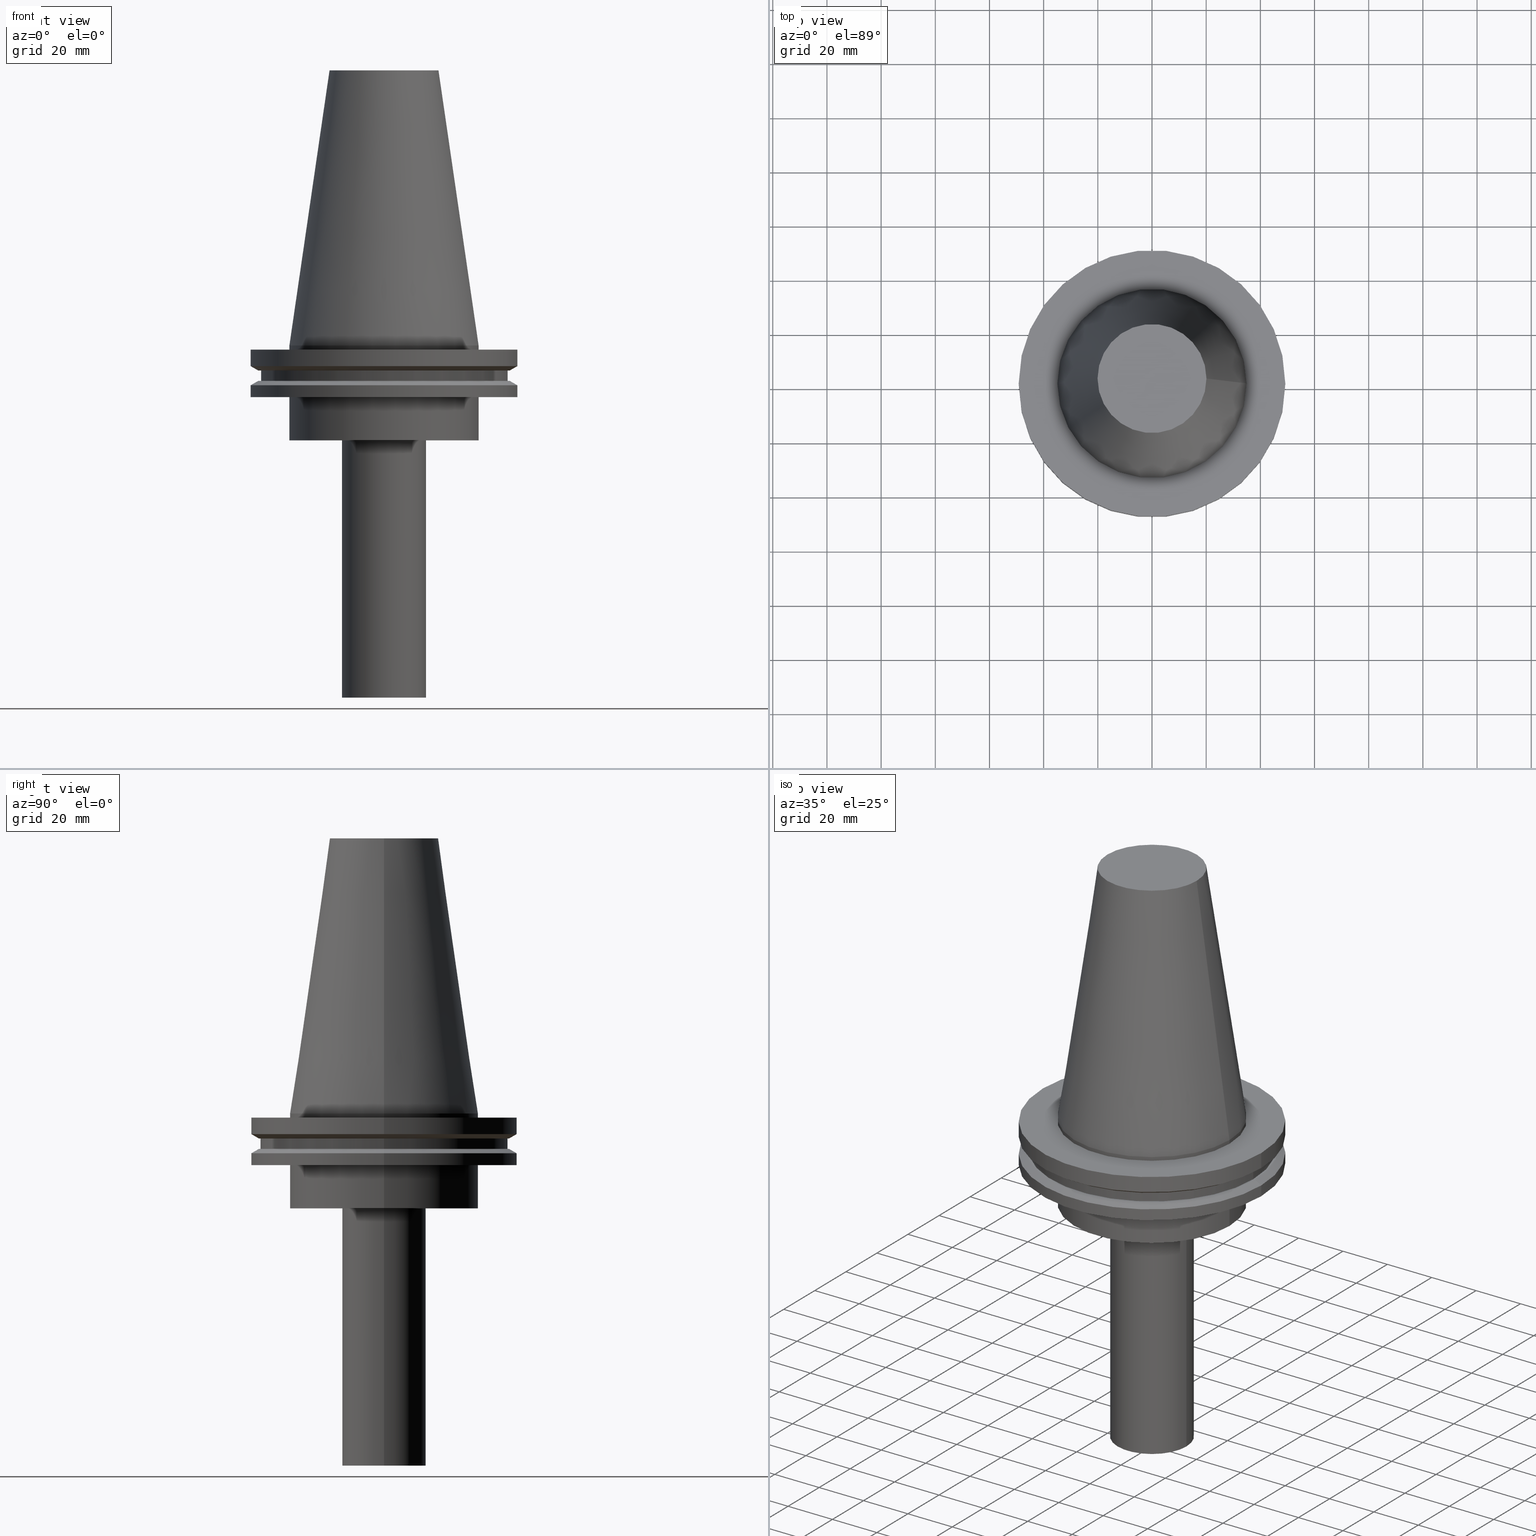
[diagram: canonical four-view strip — front | top / right | iso, engineering-drawing reading convention]
A machine part, canonical four-view strip (front | top / right | iso — engineering-drawing reading convention). The complete STEP part file that produces these views, byte-faithful:
ISO-10303-21;
HEADER;
FILE_DESCRIPTION (( 'STEP AP203' ),
    '1' );
FILE_NAME ('11.326.633.stp',
    '2022-03-09T14:50:32',
    ( '' ),
    ( '' ),
    'SwSTEP 2.0',
    'SolidWorks 2021',
    '' );
FILE_SCHEMA (( 'CONFIG_CONTROL_DESIGN' ));
ENDSEC;

DATA;
#1 = DATE_TIME_ROLE ( 'creation_date' ) ;
#2 = AXIS2_PLACEMENT_3D ( 'NONE', #286, #349, #42 ) ;
#3 = DIRECTION ( 'NONE',  ( -0.000000000000000000, -0.000000000000000000, 1.000000000000000000 ) ) ;
#4 = CARTESIAN_POINT ( 'NONE',  ( 0.000000000000000000, 0.000000000000000000, -1.499999999999987566 ) ) ;
#5 = AXIS2_PLACEMENT_3D ( 'NONE', #214, #336, #10 ) ;
#6 = AXIS2_PLACEMENT_3D ( 'NONE', #280, #367, #250 ) ;
#7 = DIRECTION ( 'NONE',  ( -0.000000000000000000, -0.000000000000000000, 1.000000000000000000 ) ) ;
#8 = CALENDAR_DATE ( 2022, 9, 3 ) ;
#9 = ORIENTED_EDGE ( 'NONE', *, *, #273, .T. ) ;
#10 = DIRECTION ( 'NONE',  ( 1.000000000000000000, 0.000000000000000000, 0.000000000000000000 ) ) ;
#11 = PERSON_AND_ORGANIZATION_ROLE ( 'classification_officer' ) ;
#12 = FACE_BOUND ( 'NONE', #355, .T. ) ;
#13 = FACE_OUTER_BOUND ( 'NONE', #325, .T. ) ;
#14 = PERSON_AND_ORGANIZATION ( #107, #312 ) ;
#15 = ORIENTED_EDGE ( 'NONE', *, *, #263, .F. ) ;
#16 = AXIS2_PLACEMENT_3D ( 'NONE', #30, #150, #100 ) ;
#17 = CYLINDRICAL_SURFACE ( 'NONE', #176, 49.21499999999999631 ) ;
#18 = DIRECTION ( 'NONE',  ( 1.000000000000000000, 0.000000000000000000, 0.000000000000000000 ) ) ;
#19 = EDGE_CURVE ( 'NONE', #77, #77, #297, .T. ) ;
#20 = VERTEX_POINT ( 'NONE', #142 ) ;
#21 = ORIENTED_EDGE ( 'NONE', *, *, #348, .T. ) ;
#22 = CIRCLE ( 'NONE', #50, 45.64500000000000313 ) ;
#23 = EDGE_LOOP ( 'NONE', ( #211 ) ) ;
#24 = ORIENTED_EDGE ( 'NONE', *, *, #273, .F. ) ;
#25 = EDGE_CURVE ( 'NONE', #20, #20, #149, .T. ) ;
#26 = DIRECTION ( 'NONE',  ( -0.000000000000000000, -0.000000000000000000, 1.000000000000000000 ) ) ;
#27 = COORDINATED_UNIVERSAL_TIME_OFFSET ( 6, 0, .BEHIND. ) ;
#28 = APPROVAL_PERSON_ORGANIZATION ( #14, #73, #341 ) ;
#29 = CARTESIAN_POINT ( 'NONE',  ( 0.000000000000000000, 0.000000000000000000, 0.000000000000000000 ) ) ;
#30 = CARTESIAN_POINT ( 'NONE',  ( 0.000000000000000000, 0.000000000000000000, -1.499999999999987566 ) ) ;
#31 = ADVANCED_FACE ( 'NONE', ( #350, #200 ), #74, .F. ) ;
#32 = CALENDAR_DATE ( 2022, 9, 3 ) ;
#33 = PRODUCT_RELATED_PRODUCT_CATEGORY ( 'detail', '', ( #235 ) ) ;
#34 = DIRECTION ( 'NONE',  ( -0.000000000000000000, -0.000000000000000000, 1.000000000000000000 ) ) ;
#35 = CARTESIAN_POINT ( 'NONE',  ( 0.000000000000000000, 45.64500000000000313, -13.05499999999999794 ) ) ;
#36 = DIRECTION ( 'NONE',  ( 1.000000000000000000, 0.000000000000000000, 0.000000000000000000 ) ) ;
#37 = CC_DESIGN_APPROVAL ( #339, ( #135 ) ) ;
#38 = ORIENTED_EDGE ( 'NONE', *, *, #289, .T. ) ;
#39 = CARTESIAN_POINT ( 'NONE',  ( 15.50000000000000000, 0.000000000000000000, -130.0000000000000000 ) ) ;
#40 = EDGE_CURVE ( 'NONE', #316, #316, #391, .T. ) ;
#41 = PERSON_AND_ORGANIZATION ( #107, #312 ) ;
#42 = DIRECTION ( 'NONE',  ( 1.000000000000000000, 0.000000000000000000, 0.000000000000000000 ) ) ;
#43 = PERSON_AND_ORGANIZATION ( #107, #312 ) ;
#44 = VERTEX_POINT ( 'NONE', #161 ) ;
#45 = ORIENTED_EDGE ( 'NONE', *, *, #40, .F. ) ;
#46 = CARTESIAN_POINT ( 'NONE',  ( 34.92499999999999005, 0.000000000000000000, 0.000000000000000000 ) ) ;
#47 = CALENDAR_DATE ( 2022, 9, 3 ) ;
#48 = ORIENTED_EDGE ( 'NONE', *, *, #212, .F. ) ;
#49 = CARTESIAN_POINT ( 'NONE',  ( 0.000000000000000000, 0.000000000000000000, 101.5999999999999943 ) ) ;
#50 = AXIS2_PLACEMENT_3D ( 'NONE', #125, #128, #253 ) ;
#51 = ADVANCED_FACE ( 'NONE', ( #262, #109 ), #196, .T. ) ;
#52 = ORIENTED_EDGE ( 'NONE', *, *, #123, .T. ) ;
#53 = DATE_AND_TIME ( #32, #204 ) ;
#54 = DIRECTION ( 'NONE',  ( 0.000000000000000000, 0.000000000000000000, -1.000000000000000000 ) ) ;
#55 = CIRCLE ( 'NONE', #86, 49.21499999999998920 ) ;
#56 = ADVANCED_FACE ( 'NONE', ( #59 ), #307, .F. ) ;
#57 = CARTESIAN_POINT ( 'NONE',  ( 0.000000000000000000, 0.000000000000000000, 101.5999999999999943 ) ) ;
#58 = CARTESIAN_POINT ( 'NONE',  ( 0.000000000000000000, 0.000000000000000000, 0.000000000000000000 ) ) ;
#59 = FACE_OUTER_BOUND ( 'NONE', #254, .T. ) ;
#60 = CARTESIAN_POINT ( 'NONE',  ( 0.000000000000000000, 0.000000000000000000, -130.0000000000000000 ) ) ;
#61 = APPROVAL_ROLE ( '' ) ;
#62 =( NAMED_UNIT ( * ) SI_UNIT ( $, .STERADIAN. ) SOLID_ANGLE_UNIT ( ) );
#63 = FACE_OUTER_BOUND ( 'NONE', #356, .T. ) ;
#64 = COORDINATED_UNIVERSAL_TIME_OFFSET ( 6, 0, .BEHIND. ) ;
#65 = EDGE_LOOP ( 'NONE', ( #287 ) ) ;
#66 = CC_DESIGN_APPROVAL ( #159, ( #144 ) ) ;
#67 = CALENDAR_DATE ( 2022, 9, 3 ) ;
#68 = PLANE ( 'NONE',  #328 ) ;
#69 = VERTEX_POINT ( 'NONE', #284 ) ;
#70 = CARTESIAN_POINT ( 'NONE',  ( 34.92499999999999716, 0.000000000000000000, -19.04999999999999716 ) ) ;
#71 = CARTESIAN_POINT ( 'NONE',  ( 49.21499999999998920, 0.000000000000000000, -19.04999999999999716 ) ) ;
#72 = DIRECTION ( 'NONE',  ( 1.000000000000000000, 0.000000000000000000, 0.000000000000000000 ) ) ;
#73 = APPROVAL ( #372, 'UNSPECIFIED' ) ;
#74 = PLANE ( 'NONE',  #324 ) ;
#75 = LOCAL_TIME ( 8, 50, 32.00000000000000000, #228 ) ;
#76 = AXIS2_PLACEMENT_3D ( 'NONE', #29, #34, #88 ) ;
#77 = VERTEX_POINT ( 'NONE', #46 ) ;
#78 = EDGE_LOOP ( 'NONE', ( #15 ) ) ;
#79 = EDGE_LOOP ( 'NONE', ( #21 ) ) ;
#80 = EDGE_LOOP ( 'NONE', ( #267 ) ) ;
#81 = ORIENTED_EDGE ( 'NONE', *, *, #156, .F. ) ;
#82 = DIRECTION ( 'NONE',  ( 0.000000000000000000, 0.000000000000000000, 1.000000000000000000 ) ) ;
#83 = AXIS2_PLACEMENT_3D ( 'NONE', #60, #7, #36 ) ;
#84 = PLANE ( 'NONE',  #102 ) ;
#85 = CARTESIAN_POINT ( 'NONE',  ( 0.000000000000000000, 0.000000000000000000, -9.204999999999991189 ) ) ;
#86 = AXIS2_PLACEMENT_3D ( 'NONE', #188, #292, #382 ) ;
#87 = DIRECTION ( 'NONE',  ( 1.000000000000000000, 0.000000000000000000, 0.000000000000000000 ) ) ;
#88 = DIRECTION ( 'NONE',  ( 1.000000000000000000, 0.000000000000000000, 0.000000000000000000 ) ) ;
#89 = CC_DESIGN_PERSON_AND_ORGANIZATION_ASSIGNMENT ( #43, #96, ( #144 ) ) ;
#90 = CYLINDRICAL_SURFACE ( 'NONE', #290, 34.92499999999999005 ) ;
#91 = ADVANCED_FACE ( 'NONE', ( #275, #304 ), #308, .T. ) ;
#92 = DIRECTION ( 'NONE',  ( -0.000000000000000000, -0.000000000000000000, 1.000000000000000000 ) ) ;
#93 = FACE_OUTER_BOUND ( 'NONE', #323, .T. ) ;
#94 = VERTEX_POINT ( 'NONE', #213 ) ;
#95 = ADVANCED_FACE ( 'NONE', ( #394, #395 ), #306, .T. ) ;
#96 = PERSON_AND_ORGANIZATION_ROLE ( 'design_supplier' ) ;
#97 = ORIENTED_EDGE ( 'NONE', *, *, #359, .T. ) ;
#98 = ADVANCED_BREP_SHAPE_REPRESENTATION ( '11.326.633', ( #364, #368 ), #148 ) ;
#99 = AXIS2_PLACEMENT_3D ( 'NONE', #195, #389, #18 ) ;
#100 = DIRECTION ( 'NONE',  ( 1.000000000000000000, 0.000000000000000000, 0.000000000000000000 ) ) ;
#101 = COORDINATED_UNIVERSAL_TIME_OFFSET ( 6, 0, .BEHIND. ) ;
#102 = AXIS2_PLACEMENT_3D ( 'NONE', #35, #360, #209 ) ;
#103 = CIRCLE ( 'NONE', #226, 49.21500000000000341 ) ;
#104 = CC_DESIGN_DATE_AND_TIME_ASSIGNMENT ( #174, #1, ( #135 ) ) ;
#105 = CARTESIAN_POINT ( 'NONE',  ( 0.000000000000000000, 0.000000000000000000, 101.5999999999999943 ) ) ;
#106 = EDGE_LOOP ( 'NONE', ( #138 ) ) ;
#107 = PERSON ( 'UNSPECIFIED', 'UNSPECIFIED', 'UNSPECIFIED', ('UNSPECIFIED'), ('UNSPECIFIED'), ('UNSPECIFIED') ) ;
#108 = FACE_OUTER_BOUND ( 'NONE', #266, .T. ) ;
#109 = FACE_OUTER_BOUND ( 'NONE', #79, .T. ) ;
#110 = AXIS2_PLACEMENT_3D ( 'NONE', #105, #163, #72 ) ;
#111 = PLANE ( 'NONE',  #2 ) ;
#112 = EDGE_LOOP ( 'NONE', ( #299 ) ) ;
#113 = ADVANCED_FACE ( 'NONE', ( #329, #118 ), #202, .T. ) ;
#114 = EDGE_LOOP ( 'NONE', ( #52 ) ) ;
#115 = CARTESIAN_POINT ( 'NONE',  ( 0.000000000000000000, 34.92499999999999716, -35.00000000000000000 ) ) ;
#116 = DIRECTION ( 'NONE',  ( -0.000000000000000000, -0.000000000000000000, 1.000000000000000000 ) ) ;
#117 = CIRCLE ( 'NONE', #309, 34.92499999999999716 ) ;
#118 = FACE_OUTER_BOUND ( 'NONE', #65, .T. ) ;
#119 = DIRECTION ( 'NONE',  ( 1.000000000000000000, 0.000000000000000000, 0.000000000000000000 ) ) ;
#120 = CIRCLE ( 'NONE', #343, 34.92499999999999716 ) ;
#121 = DIRECTION ( 'NONE',  ( -0.000000000000000000, -0.000000000000000000, 1.000000000000000000 ) ) ;
#122 = ADVANCED_FACE ( 'NONE', ( #363, #180 ), #277, .F. ) ;
#123 = EDGE_CURVE ( 'NONE', #230, #230, #248, .T. ) ;
#124 = DIRECTION ( 'NONE',  ( 1.000000000000000000, 0.000000000000000000, 0.000000000000000000 ) ) ;
#125 = CARTESIAN_POINT ( 'NONE',  ( 0.000000000000000000, 0.000000000000000000, -9.204999999999991189 ) ) ;
#126 = CC_DESIGN_SECURITY_CLASSIFICATION ( #296, ( #144 ) ) ;
#127 = AXIS2_PLACEMENT_3D ( 'NONE', #4, #3, #124 ) ;
#128 = DIRECTION ( 'NONE',  ( -0.000000000000000000, -0.000000000000000000, 1.000000000000000000 ) ) ;
#129 = DIRECTION ( 'NONE',  ( 1.000000000000000000, 0.000000000000000000, 0.000000000000000000 ) ) ;
#130 = EDGE_LOOP ( 'NONE', ( #383 ) ) ;
#131 = SHAPE_DEFINITION_REPRESENTATION ( #173, #98 ) ;
#132 = UNCERTAINTY_MEASURE_WITH_UNIT (LENGTH_MEASURE( 1.000000000000000082E-05 ), #256, 'distance_accuracy_value', 'NONE');
#133 = EDGE_LOOP ( 'NONE', ( #48 ) ) ;
#134 = EDGE_LOOP ( 'NONE', ( #232 ) ) ;
#135 = PRODUCT_DEFINITION ( 'UNKNOWN', '', #144, #353 ) ;
#136 = CYLINDRICAL_SURFACE ( 'NONE', #110, 49.21499999999998920 ) ;
#137 = APPROVAL_DATE_TIME ( #216, #159 ) ;
#138 = ORIENTED_EDGE ( 'NONE', *, *, #201, .F. ) ;
#139 = DIRECTION ( 'NONE',  ( -1.000000000000000000, 0.000000000000000000, -0.000000000000000000 ) ) ;
#140 = DIRECTION ( 'NONE',  ( 0.000000000000000000, -0.000000000000000000, 1.000000000000000000 ) ) ;
#141 = CONICAL_SURFACE ( 'NONE', #294, 49.21499999999998920, 1.047197551196554333 ) ;
#142 = CARTESIAN_POINT ( 'NONE',  ( 15.50000000000000000, 0.000000000000000000, -35.00000000000000000 ) ) ;
#143 = ORIENTED_EDGE ( 'NONE', *, *, #359, .F. ) ;
#144 = PRODUCT_DEFINITION_FORMATION_WITH_SPECIFIED_SOURCE ( 'ANY', '', #235, .NOT_KNOWN. ) ;
#145 = ORIENTED_EDGE ( 'NONE', *, *, #201, .T. ) ;
#146 = EDGE_LOOP ( 'NONE', ( #260 ) ) ;
#147 = DIRECTION ( 'NONE',  ( 1.000000000000000000, 0.000000000000000000, 0.000000000000000000 ) ) ;
#148 =( GEOMETRIC_REPRESENTATION_CONTEXT ( 3 ) GLOBAL_UNCERTAINTY_ASSIGNED_CONTEXT ( ( #132 ) ) GLOBAL_UNIT_ASSIGNED_CONTEXT ( ( #256, #222, #62 ) ) REPRESENTATION_CONTEXT ( 'NONE', 'WORKASPACE' ) );
#149 = CIRCLE ( 'NONE', #99, 15.50000000000000000 ) ;
#150 = DIRECTION ( 'NONE',  ( -0.000000000000000000, -0.000000000000000000, 1.000000000000000000 ) ) ;
#151 = APPROVAL_DATE_TIME ( #53, #339 ) ;
#152 = CARTESIAN_POINT ( 'NONE',  ( 0.000000000000000000, 0.000000000000000000, 101.5999999999999943 ) ) ;
#153 = AXIS2_PLACEMENT_3D ( 'NONE', #175, #121, #87 ) ;
#154 = DIRECTION ( 'NONE',  ( 1.000000000000000000, 0.000000000000000000, 0.000000000000000000 ) ) ;
#155 = CARTESIAN_POINT ( 'NONE',  ( 0.000000000000000000, 46.43919780457007818, -9.204999999999998295 ) ) ;
#156 = EDGE_CURVE ( 'NONE', #265, #265, #351, .T. ) ;
#157 = MECHANICAL_CONTEXT ( 'NONE', #314, 'mechanical' ) ;
#158 = CALENDAR_DATE ( 2022, 9, 3 ) ;
#159 = APPROVAL ( #247, 'UNSPECIFIED' ) ;
#160 = SECURITY_CLASSIFICATION_LEVEL ( 'unclassified' ) ;
#161 = CARTESIAN_POINT ( 'NONE',  ( 20.10819343178871321, 0.000000000000000000, 101.5999999999999801 ) ) ;
#162 = CARTESIAN_POINT ( 'NONE',  ( 46.43919780457007818, 0.000000000000000000, -9.204999999999991189 ) ) ;
#163 = DIRECTION ( 'NONE',  ( -0.000000000000000000, -0.000000000000000000, 1.000000000000000000 ) ) ;
#164 = ORIENTED_EDGE ( 'NONE', *, *, #348, .F. ) ;
#165 = CARTESIAN_POINT ( 'NONE',  ( 0.000000000000000000, 0.000000000000000000, 101.5999999999999943 ) ) ;
#166 = ADVANCED_FACE ( 'NONE', ( #244, #245 ), #84, .F. ) ;
#167 = ORIENTED_EDGE ( 'NONE', *, *, #233, .F. ) ;
#168 = CARTESIAN_POINT ( 'NONE',  ( 0.000000000000000000, 0.000000000000000000, -13.05499999999999794 ) ) ;
#169 = AXIS2_PLACEMENT_3D ( 'NONE', #310, #379, #139 ) ;
#170 = DIRECTION ( 'NONE',  ( -0.000000000000000000, -0.000000000000000000, 1.000000000000000000 ) ) ;
#171 = CIRCLE ( 'NONE', #5, 46.43919780457007818 ) ;
#172 = CARTESIAN_POINT ( 'NONE',  ( 0.000000000000000000, 0.000000000000000000, -19.04999999999999716 ) ) ;
#173 = PRODUCT_DEFINITION_SHAPE ( 'NONE', 'NONE',  #135 ) ;
#174 = DATE_AND_TIME ( #8, #264 ) ;
#175 = CARTESIAN_POINT ( 'NONE',  ( 0.000000000000000000, 0.000000000000000000, -9.204999999999991189 ) ) ;
#176 = AXIS2_PLACEMENT_3D ( 'NONE', #165, #194, #258 ) ;
#177 = AXIS2_PLACEMENT_3D ( 'NONE', #168, #234, #231 ) ;
#178 = CARTESIAN_POINT ( 'NONE',  ( 0.000000000000000000, 0.000000000000000000, 101.5999999999999801 ) ) ;
#179 = DIRECTION ( 'NONE',  ( -1.000000000000000000, 0.000000000000000000, 0.000000000000000000 ) ) ;
#180 = FACE_OUTER_BOUND ( 'NONE', #114, .T. ) ;
#181 = FACE_BOUND ( 'NONE', #225, .T. ) ;
#182 = CIRCLE ( 'NONE', #16, 34.92499999999999005 ) ;
#183 = CARTESIAN_POINT ( 'NONE',  ( 0.000000000000000000, 0.000000000000000000, -7.602389855251287187 ) ) ;
#184 = EDGE_CURVE ( 'NONE', #347, #347, #117, .T. ) ;
#185 = PLANE ( 'NONE',  #169 ) ;
#186 = LOCAL_TIME ( 8, 50, 32.00000000000000000, #293 ) ;
#187 = ADVANCED_FACE ( 'NONE', ( #303, #393 ), #220, .T. ) ;
#188 = CARTESIAN_POINT ( 'NONE',  ( 0.000000000000000000, 0.000000000000000000, -19.04999999999999716 ) ) ;
#189 = LOCAL_TIME ( 8, 50, 32.00000000000000000, #101 ) ;
#190 = DIRECTION ( 'NONE',  ( 1.000000000000000000, 0.000000000000000000, 0.000000000000000000 ) ) ;
#191 = AXIS2_PLACEMENT_3D ( 'NONE', #58, #206, #179 ) ;
#192 = ORIENTED_EDGE ( 'NONE', *, *, #25, .T. ) ;
#193 = ADVANCED_FACE ( 'NONE', ( #331, #203 ), #90, .T. ) ;
#194 = DIRECTION ( 'NONE',  ( -0.000000000000000000, -0.000000000000000000, 1.000000000000000000 ) ) ;
#195 = CARTESIAN_POINT ( 'NONE',  ( 0.000000000000000000, 0.000000000000000000, -35.00000000000000000 ) ) ;
#196 = CYLINDRICAL_SURFACE ( 'NONE', #210, 34.92499999999999716 ) ;
#197 = ORIENTED_EDGE ( 'NONE', *, *, #289, .F. ) ;
#198 = AXIS2_PLACEMENT_3D ( 'NONE', #362, #54, #270 ) ;
#199 = CC_DESIGN_PERSON_AND_ORGANIZATION_ASSIGNMENT ( #285, #11, ( #296 ) ) ;
#200 = FACE_OUTER_BOUND ( 'NONE', #381, .T. ) ;
#201 = EDGE_CURVE ( 'NONE', #44, #44, #346, .T. ) ;
#202 = CYLINDRICAL_SURFACE ( 'NONE', #257, 45.64500000000000313 ) ;
#203 = FACE_OUTER_BOUND ( 'NONE', #146, .T. ) ;
#204 = LOCAL_TIME ( 8, 50, 32.00000000000000000, #27 ) ;
#205 = APPLICATION_PROTOCOL_DEFINITION ( 'international standard', 'config_control_design', 1994, #314 ) ;
#206 = DIRECTION ( 'NONE',  ( 0.000000000000000000, 0.000000000000000000, -1.000000000000000000 ) ) ;
#207 = CC_DESIGN_DATE_AND_TIME_ASSIGNMENT ( #224, #219, ( #296 ) ) ;
#208 = DIRECTION ( 'NONE',  ( 1.000000000000000000, 0.000000000000000000, 0.000000000000000000 ) ) ;
#209 = DIRECTION ( 'NONE',  ( -1.000000000000000000, 0.000000000000000000, -0.000000000000000000 ) ) ;
#210 = AXIS2_PLACEMENT_3D ( 'NONE', #49, #26, #147 ) ;
#211 = ORIENTED_EDGE ( 'NONE', *, *, #123, .F. ) ;
#212 = EDGE_CURVE ( 'NONE', #371, #371, #182, .T. ) ;
#213 = CARTESIAN_POINT ( 'NONE',  ( 49.21500000000000341, 0.000000000000000000, -7.602389855251287187 ) ) ;
#214 = CARTESIAN_POINT ( 'NONE',  ( 0.000000000000000000, 0.000000000000000000, -13.05499999999999794 ) ) ;
#215 = ORIENTED_EDGE ( 'NONE', *, *, #263, .T. ) ;
#216 = DATE_AND_TIME ( #47, #186 ) ;
#217 = EDGE_LOOP ( 'NONE', ( #326 ) ) ;
#218 = CARTESIAN_POINT ( 'NONE',  ( 34.92499999999999716, 0.000000000000000000, -35.00000000000000000 ) ) ;
#219 = DATE_TIME_ROLE ( 'classification_date' ) ;
#220 = CONICAL_SURFACE ( 'NONE', #238, 46.43919780457007818, 1.047197551196575205 ) ;
#221 = APPLICATION_CONTEXT ( 'configuration controlled 3d designs of mechanical parts and assemblies' ) ;
#222 =( NAMED_UNIT ( * ) PLANE_ANGLE_UNIT ( ) SI_UNIT ( $, .RADIAN. ) );
#223 = FACE_OUTER_BOUND ( 'NONE', #357, .T. ) ;
#224 = DATE_AND_TIME ( #158, #189 ) ;
#225 = EDGE_LOOP ( 'NONE', ( #9 ) ) ;
#226 = AXIS2_PLACEMENT_3D ( 'NONE', #183, #92, #129 ) ;
#227 = FACE_OUTER_BOUND ( 'NONE', #298, .T. ) ;
#228 = COORDINATED_UNIVERSAL_TIME_OFFSET ( 6, 0, .BEHIND. ) ;
#229 = EDGE_LOOP ( 'NONE', ( #192 ) ) ;
#230 = VERTEX_POINT ( 'NONE', #318 ) ;
#231 = DIRECTION ( 'NONE',  ( 1.000000000000000000, 0.000000000000000000, 0.000000000000000000 ) ) ;
#232 = ORIENTED_EDGE ( 'NONE', *, *, #156, .T. ) ;
#233 = EDGE_CURVE ( 'NONE', #345, #345, #171, .T. ) ;
#234 = DIRECTION ( 'NONE',  ( -0.000000000000000000, -0.000000000000000000, 1.000000000000000000 ) ) ;
#235 = PRODUCT ( '11.326.633', '11.326.633', '', ( #157 ) ) ;
#236 = DIRECTION ( 'NONE',  ( 1.000000000000000000, 0.000000000000000000, 0.000000000000000000 ) ) ;
#237 = PERSON_AND_ORGANIZATION ( #107, #312 ) ;
#238 = AXIS2_PLACEMENT_3D ( 'NONE', #85, #330, #208 ) ;
#239 = DIRECTION ( 'NONE',  ( 0.000000000000000000, -0.000000000000000000, 1.000000000000000000 ) ) ;
#240 = DIRECTION ( 'NONE',  ( 1.000000000000000000, 0.000000000000000000, 0.000000000000000000 ) ) ;
#241 = ADVANCED_FACE ( 'NONE', ( #12, #369 ), #141, .T. ) ;
#242 = CARTESIAN_POINT ( 'NONE',  ( 0.000000000000000000, 15.50000000000000000, -130.0000000000000000 ) ) ;
#243 = CIRCLE ( 'NONE', #6, 49.21499999999998920 ) ;
#244 = FACE_BOUND ( 'NONE', #283, .T. ) ;
#245 = FACE_OUTER_BOUND ( 'NONE', #322, .T. ) ;
#246 = EDGE_CURVE ( 'NONE', #313, #313, #366, .T. ) ;
#247 = APPROVAL_STATUS ( 'not_yet_approved' ) ;
#248 = CIRCLE ( 'NONE', #127, 49.21499999999999631 ) ;
#249 = CARTESIAN_POINT ( 'NONE',  ( 34.92499999999999005, 0.000000000000000000, -1.499999999999987566 ) ) ;
#250 = DIRECTION ( 'NONE',  ( 1.000000000000000000, 0.000000000000000000, 0.000000000000000000 ) ) ;
#251 = PERSON_AND_ORGANIZATION_ROLE ( 'design_owner' ) ;
#252 = ORIENTED_EDGE ( 'NONE', *, *, #246, .F. ) ;
#253 = DIRECTION ( 'NONE',  ( 1.000000000000000000, 0.000000000000000000, 0.000000000000000000 ) ) ;
#254 = EDGE_LOOP ( 'NONE', ( #252 ) ) ;
#255 = CARTESIAN_POINT ( 'NONE',  ( 0.000000000000000000, 0.000000000000000000, -14.65761014474876944 ) ) ;
#256 =( LENGTH_UNIT ( ) NAMED_UNIT ( * ) SI_UNIT ( .MILLI., .METRE. ) );
#257 = AXIS2_PLACEMENT_3D ( 'NONE', #152, #278, #119 ) ;
#258 = DIRECTION ( 'NONE',  ( 1.000000000000000000, 0.000000000000000000, 0.000000000000000000 ) ) ;
#259 = PERSON_AND_ORGANIZATION_ROLE ( 'creator' ) ;
#260 = ORIENTED_EDGE ( 'NONE', *, *, #212, .T. ) ;
#261 = FACE_OUTER_BOUND ( 'NONE', #23, .T. ) ;
#262 = FACE_OUTER_BOUND ( 'NONE', #338, .T. ) ;
#263 = EDGE_CURVE ( 'NONE', #94, #94, #103, .T. ) ;
#264 = LOCAL_TIME ( 8, 50, 32.00000000000000000, #64 ) ;
#265 = VERTEX_POINT ( 'NONE', #162 ) ;
#266 = EDGE_LOOP ( 'NONE', ( #197 ) ) ;
#267 = ORIENTED_EDGE ( 'NONE', *, *, #19, .F. ) ;
#268 = ADVANCED_FACE ( 'NONE', ( #93, #181 ), #68, .F. ) ;
#269 = DIRECTION ( 'NONE',  ( 1.000000000000000000, 0.000000000000000000, 0.000000000000000000 ) ) ;
#270 = DIRECTION ( 'NONE',  ( -1.000000000000000000, 0.000000000000000000, -0.000000000000000000 ) ) ;
#271 = AXIS2_PLACEMENT_3D ( 'NONE', #242, #239, #272 ) ;
#272 = DIRECTION ( 'NONE',  ( 1.000000000000000000, 0.000000000000000000, 0.000000000000000000 ) ) ;
#273 = EDGE_CURVE ( 'NONE', #344, #344, #22, .T. ) ;
#274 = CC_DESIGN_PERSON_AND_ORGANIZATION_ASSIGNMENT ( #337, #276, ( #135 ) ) ;
#275 = FACE_BOUND ( 'NONE', #106, .T. ) ;
#276 = PERSON_AND_ORGANIZATION_ROLE ( 'creator' ) ;
#277 = PLANE ( 'NONE',  #198 ) ;
#278 = DIRECTION ( 'NONE',  ( -0.000000000000000000, -0.000000000000000000, 1.000000000000000000 ) ) ;
#279 = VERTEX_POINT ( 'NONE', #218 ) ;
#280 = CARTESIAN_POINT ( 'NONE',  ( 0.000000000000000000, 0.000000000000000000, -14.65761014474876944 ) ) ;
#281 = AXIS2_PLACEMENT_3D ( 'NONE', #295, #170, #269 ) ;
#282 = APPLICATION_PROTOCOL_DEFINITION ( 'international standard', 'config_control_design', 1994, #221 ) ;
#283 = EDGE_LOOP ( 'NONE', ( #45 ) ) ;
#284 = CARTESIAN_POINT ( 'NONE',  ( 49.21499999999998920, 0.000000000000000000, -14.65761014474876944 ) ) ;
#285 = PERSON_AND_ORGANIZATION ( #107, #312 ) ;
#286 = CARTESIAN_POINT ( 'NONE',  ( 0.000000000000000000, 49.21499999999998920, -19.04999999999999716 ) ) ;
#287 = ORIENTED_EDGE ( 'NONE', *, *, #40, .T. ) ;
#288 = CARTESIAN_POINT ( 'NONE',  ( 45.64500000000000313, 0.000000000000000000, -13.05499999999999794 ) ) ;
#289 = EDGE_CURVE ( 'NONE', #69, #69, #243, .T. ) ;
#290 = AXIS2_PLACEMENT_3D ( 'NONE', #57, #332, #358 ) ;
#291 = EDGE_LOOP ( 'NONE', ( #38 ) ) ;
#292 = DIRECTION ( 'NONE',  ( -0.000000000000000000, -0.000000000000000000, 1.000000000000000000 ) ) ;
#293 = COORDINATED_UNIVERSAL_TIME_OFFSET ( 6, 0, .BEHIND. ) ;
#294 = AXIS2_PLACEMENT_3D ( 'NONE', #255, #374, #340 ) ;
#295 = CARTESIAN_POINT ( 'NONE',  ( 0.000000000000000000, 0.000000000000000000, 0.000000000000000000 ) ) ;
#296 = SECURITY_CLASSIFICATION ( '', '', #160 ) ;
#297 = CIRCLE ( 'NONE', #281, 34.92499999999999005 ) ;
#298 = EDGE_LOOP ( 'NONE', ( #143 ) ) ;
#299 = ORIENTED_EDGE ( 'NONE', *, *, #25, .F. ) ;
#300 = DIRECTION ( 'NONE',  ( -0.000000000000000000, -0.000000000000000000, 1.000000000000000000 ) ) ;
#301 = PERSON_AND_ORGANIZATION ( #107, #312 ) ;
#302 = CC_DESIGN_APPROVAL ( #73, ( #296 ) ) ;
#303 = FACE_OUTER_BOUND ( 'NONE', #78, .T. ) ;
#304 = FACE_OUTER_BOUND ( 'NONE', #320, .T. ) ;
#305 = PERSON_AND_ORGANIZATION ( #107, #312 ) ;
#306 = CYLINDRICAL_SURFACE ( 'NONE', #76, 15.50000000000000000 ) ;
#307 = PLANE ( 'NONE',  #271 ) ;
#308 = CONICAL_SURFACE ( 'NONE', #191, 34.92499999999999005, 0.1448138465474119452 ) ;
#309 = AXIS2_PLACEMENT_3D ( 'NONE', #172, #300, #365 ) ;
#310 = CARTESIAN_POINT ( 'NONE',  ( 0.000000000000000000, 20.10819343178871321, 101.5999999999999943 ) ) ;
#311 = ADVANCED_FACE ( 'NONE', ( #63 ), #185, .F. ) ;
#312 = ORGANIZATION ( 'UNSPECIFIED', 'UNSPECIFIED', '' ) ;
#313 = VERTEX_POINT ( 'NONE', #39 ) ;
#314 = APPLICATION_CONTEXT ( 'configuration controlled 3d designs of mechanical parts and assemblies' ) ;
#315 = CARTESIAN_POINT ( 'NONE',  ( 45.64500000000000313, 0.000000000000000000, -9.204999999999991189 ) ) ;
#316 = VERTEX_POINT ( 'NONE', #288 ) ;
#317 = ADVANCED_FACE ( 'NONE', ( #261, #223 ), #17, .T. ) ;
#318 = CARTESIAN_POINT ( 'NONE',  ( 49.21499999999999631, 0.000000000000000000, -1.499999999999987566 ) ) ;
#319 = DATE_AND_TIME ( #67, #75 ) ;
#320 = EDGE_LOOP ( 'NONE', ( #354 ) ) ;
#321 = CARTESIAN_POINT ( 'NONE',  ( 0.000000000000000000, 0.000000000000000000, -35.00000000000000000 ) ) ;
#322 = EDGE_LOOP ( 'NONE', ( #373 ) ) ;
#323 = EDGE_LOOP ( 'NONE', ( #81 ) ) ;
#324 = AXIS2_PLACEMENT_3D ( 'NONE', #115, #140, #387 ) ;
#325 = EDGE_LOOP ( 'NONE', ( #97 ) ) ;
#326 = ORIENTED_EDGE ( 'NONE', *, *, #246, .T. ) ;
#327 = APPROVAL_ROLE ( '' ) ;
#328 = AXIS2_PLACEMENT_3D ( 'NONE', #155, #377, #154 ) ;
#329 = FACE_OUTER_BOUND ( 'NONE', #342, .T. ) ;
#330 = DIRECTION ( 'NONE',  ( -0.000000000000000000, -0.000000000000000000, 1.000000000000000000 ) ) ;
#331 = FACE_OUTER_BOUND ( 'NONE', #80, .T. ) ;
#332 = DIRECTION ( 'NONE',  ( -0.000000000000000000, -0.000000000000000000, 1.000000000000000000 ) ) ;
#333 = CLOSED_SHELL ( 'NONE', ( #91, #311, #31, #51, #384, #392, #241, #166, #113, #268, #187, #317, #122, #193, #95, #56 ) ) ;
#334 = CARTESIAN_POINT ( 'NONE',  ( 0.000000000000000000, 0.000000000000000000, 0.000000000000000000 ) ) ;
#335 = CARTESIAN_POINT ( 'NONE',  ( 46.43919780457007818, 0.000000000000000000, -13.05499999999999794 ) ) ;
#336 = DIRECTION ( 'NONE',  ( -0.000000000000000000, -0.000000000000000000, 1.000000000000000000 ) ) ;
#337 = PERSON_AND_ORGANIZATION ( #107, #312 ) ;
#338 = EDGE_LOOP ( 'NONE', ( #388 ) ) ;
#339 = APPROVAL ( #370, 'UNSPECIFIED' ) ;
#340 = DIRECTION ( 'NONE',  ( -1.000000000000000000, 0.000000000000000000, 0.000000000000000000 ) ) ;
#341 = APPROVAL_ROLE ( '' ) ;
#342 = EDGE_LOOP ( 'NONE', ( #24 ) ) ;
#343 = AXIS2_PLACEMENT_3D ( 'NONE', #321, #352, #190 ) ;
#344 = VERTEX_POINT ( 'NONE', #315 ) ;
#345 = VERTEX_POINT ( 'NONE', #335 ) ;
#346 = CIRCLE ( 'NONE', #378, 20.10819343178871321 ) ;
#347 = VERTEX_POINT ( 'NONE', #70 ) ;
#348 = EDGE_CURVE ( 'NONE', #279, #279, #120, .T. ) ;
#349 = DIRECTION ( 'NONE',  ( 0.000000000000000000, -0.000000000000000000, 1.000000000000000000 ) ) ;
#350 = FACE_BOUND ( 'NONE', #229, .T. ) ;
#351 = CIRCLE ( 'NONE', #153, 46.43919780457007818 ) ;
#352 = DIRECTION ( 'NONE',  ( -0.000000000000000000, -0.000000000000000000, 1.000000000000000000 ) ) ;
#353 = DESIGN_CONTEXT ( 'detailed design', #221, 'design' ) ;
#354 = ORIENTED_EDGE ( 'NONE', *, *, #19, .T. ) ;
#355 = EDGE_LOOP ( 'NONE', ( #167 ) ) ;
#356 = EDGE_LOOP ( 'NONE', ( #145 ) ) ;
#357 = EDGE_LOOP ( 'NONE', ( #215 ) ) ;
#358 = DIRECTION ( 'NONE',  ( 1.000000000000000000, 0.000000000000000000, 0.000000000000000000 ) ) ;
#359 = EDGE_CURVE ( 'NONE', #376, #376, #55, .T. ) ;
#360 = DIRECTION ( 'NONE',  ( 0.000000000000000000, 0.000000000000000000, -1.000000000000000000 ) ) ;
#361 = APPROVAL_PERSON_ORGANIZATION ( #301, #159, #61 ) ;
#362 = CARTESIAN_POINT ( 'NONE',  ( 0.000000000000000000, 49.21499999999999631, -1.499999999999992895 ) ) ;
#363 = FACE_BOUND ( 'NONE', #133, .T. ) ;
#364 = MANIFOLD_SOLID_BREP ( 'CKB', #333 ) ;
#365 = DIRECTION ( 'NONE',  ( 1.000000000000000000, 0.000000000000000000, 0.000000000000000000 ) ) ;
#366 = CIRCLE ( 'NONE', #83, 15.50000000000000000 ) ;
#367 = DIRECTION ( 'NONE',  ( -0.000000000000000000, -0.000000000000000000, 1.000000000000000000 ) ) ;
#368 = AXIS2_PLACEMENT_3D ( 'NONE', #334, #82, #240 ) ;
#369 = FACE_OUTER_BOUND ( 'NONE', #291, .T. ) ;
#370 = APPROVAL_STATUS ( 'not_yet_approved' ) ;
#371 = VERTEX_POINT ( 'NONE', #249 ) ;
#372 = APPROVAL_STATUS ( 'not_yet_approved' ) ;
#373 = ORIENTED_EDGE ( 'NONE', *, *, #233, .T. ) ;
#374 = DIRECTION ( 'NONE',  ( 0.000000000000000000, 0.000000000000000000, -1.000000000000000000 ) ) ;
#375 = CC_DESIGN_PERSON_AND_ORGANIZATION_ASSIGNMENT ( #41, #259, ( #144 ) ) ;
#376 = VERTEX_POINT ( 'NONE', #71 ) ;
#377 = DIRECTION ( 'NONE',  ( 0.000000000000000000, -0.000000000000000000, 1.000000000000000000 ) ) ;
#378 = AXIS2_PLACEMENT_3D ( 'NONE', #178, #116, #236 ) ;
#379 = DIRECTION ( 'NONE',  ( 0.000000000000000000, 0.000000000000000000, -1.000000000000000000 ) ) ;
#380 = APPROVAL_DATE_TIME ( #319, #73 ) ;
#381 = EDGE_LOOP ( 'NONE', ( #164 ) ) ;
#382 = DIRECTION ( 'NONE',  ( 1.000000000000000000, 0.000000000000000000, 0.000000000000000000 ) ) ;
#383 = ORIENTED_EDGE ( 'NONE', *, *, #184, .T. ) ;
#384 = ADVANCED_FACE ( 'NONE', ( #227, #386 ), #111, .F. ) ;
#385 = APPROVAL_PERSON_ORGANIZATION ( #237, #339, #327 ) ;
#386 = FACE_BOUND ( 'NONE', #130, .T. ) ;
#387 = DIRECTION ( 'NONE',  ( 1.000000000000000000, 0.000000000000000000, 0.000000000000000000 ) ) ;
#388 = ORIENTED_EDGE ( 'NONE', *, *, #184, .F. ) ;
#389 = DIRECTION ( 'NONE',  ( -0.000000000000000000, -0.000000000000000000, 1.000000000000000000 ) ) ;
#390 = CC_DESIGN_PERSON_AND_ORGANIZATION_ASSIGNMENT ( #305, #251, ( #235 ) ) ;
#391 = CIRCLE ( 'NONE', #177, 45.64500000000000313 ) ;
#392 = ADVANCED_FACE ( 'NONE', ( #108, #13 ), #136, .T. ) ;
#393 = FACE_BOUND ( 'NONE', #134, .T. ) ;
#394 = FACE_OUTER_BOUND ( 'NONE', #112, .T. ) ;
#395 = FACE_OUTER_BOUND ( 'NONE', #217, .T. ) ;
ENDSEC;
END-ISO-10303-21;
